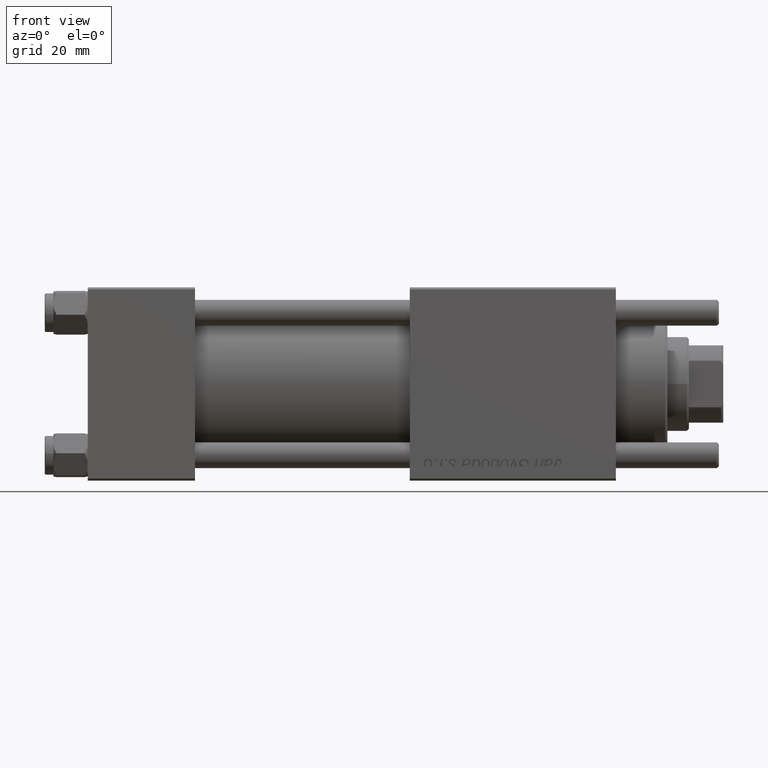
[diagram: clean part render]
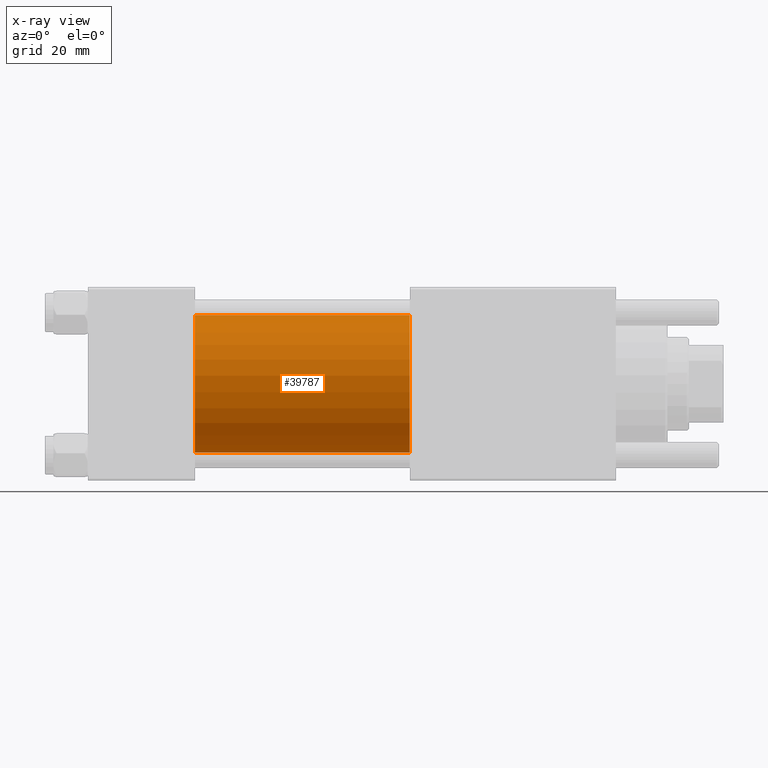
[diagram: x-ray — body ghosted, one internal face saturated and labeled with its STEP entity id]
A machine part, front view, then the same camera in x-ray: the body is ghosted and one INTERNAL B-rep face — a face not visible from any outside direction — is saturated and labeled: STEP entity #39787.
In plain terms, the highlighted cylindrical surface (partial cylindrical patch) has radius 16 mm, axis along (-1, -0, -0).
Its self-contained STEP definition (entity closure, byte-faithful):
#2209 = DIRECTION ( 'NONE',  ( 1.000000000000000000, 0.000000000000000000, 0.000000000000000000 ) ) ;
#3394 = CARTESIAN_POINT ( 'NONE',  ( 75.00000000000001421, -6.426503353294456087E-16, -16.00000000000000000 ) ) ;
#3825 = DIRECTION ( 'NONE',  ( -1.000000000000000000, -0.000000000000000000, -0.000000000000000000 ) ) ;
#4072 = LINE ( 'NONE', #47452, #41554 ) ;
#4285 = ORIENTED_EDGE ( 'NONE', *, *, #22766, .F. ) ;
#11953 = DIRECTION ( 'NONE',  ( -1.000000000000000000, -0.000000000000000000, -0.000000000000000000 ) ) ;
#12250 = CIRCLE ( 'NONE', #50779, 16.00000000000000000 ) ;
#13313 = CARTESIAN_POINT ( 'NONE',  ( 25.00000000000000000, -6.426503353294456087E-16, -16.00000000000000000 ) ) ;
#15282 = DIRECTION ( 'NONE',  ( 1.000000000000000000, 0.000000000000000000, 0.000000000000000000 ) ) ;
#17271 = VERTEX_POINT ( 'NONE', #13313 ) ;
#20409 = EDGE_CURVE ( 'NONE', #48518, #17271, #4072, .T. ) ;
#22766 = EDGE_CURVE ( 'NONE', #42854, #17271, #12250, .T. ) ;
#23763 = CARTESIAN_POINT ( 'NONE',  ( 75.00000000000001421, -2.602085213965210642E-15, 0.000000000000000000 ) ) ;
#23897 = DIRECTION ( 'NONE',  ( 0.000000000000000000, 0.000000000000000000, -1.000000000000000000 ) ) ;
#24486 = ORIENTED_EDGE ( 'NONE', *, *, #56316, .F. ) ;
#24655 = CARTESIAN_POINT ( 'NONE',  ( 75.00000000000001421, -2.602085213965210642E-15, 16.00000000000000000 ) ) ;
#26478 = LINE ( 'NONE', #33979, #54793 ) ;
#27014 = ORIENTED_EDGE ( 'NONE', *, *, #20409, .T. ) ;
#27570 = VERTEX_POINT ( 'NONE', #24655 ) ;
#30020 = DIRECTION ( 'NONE',  ( 0.000000000000000000, 0.000000000000000000, -1.000000000000000000 ) ) ;
#31863 = CIRCLE ( 'NONE', #47434, 16.00000000000000000 ) ;
#33979 = CARTESIAN_POINT ( 'NONE',  ( 75.00000000000001421, -2.602085213965210642E-15, 16.00000000000000000 ) ) ;
#34693 = CARTESIAN_POINT ( 'NONE',  ( 25.00000000000000000, -2.602085213965210642E-15, 16.00000000000000000 ) ) ;
#36463 = AXIS2_PLACEMENT_3D ( 'NONE', #23763, #11953, #41299 ) ;
#39787 = ADVANCED_FACE ( 'NONE', ( #47013 ), #50487, .F. ) ;
#41299 = DIRECTION ( 'NONE',  ( 0.000000000000000000, 0.000000000000000000, 1.000000000000000000 ) ) ;
#41554 = VECTOR ( 'NONE', #51765, 1000.000000000000000 ) ;
#41716 = CARTESIAN_POINT ( 'NONE',  ( 25.00000000000000000, -2.602085213965210642E-15, 0.000000000000000000 ) ) ;
#42854 = VERTEX_POINT ( 'NONE', #34693 ) ;
#47013 = FACE_OUTER_BOUND ( 'NONE', #56069, .T. ) ;
#47268 = CARTESIAN_POINT ( 'NONE',  ( 75.00000000000001421, -2.602085213965210642E-15, 0.000000000000000000 ) ) ;
#47434 = AXIS2_PLACEMENT_3D ( 'NONE', #47268, #2209, #30020 ) ;
#47452 = CARTESIAN_POINT ( 'NONE',  ( 75.00000000000001421, -6.426503353294456087E-16, -16.00000000000000000 ) ) ;
#48518 = VERTEX_POINT ( 'NONE', #3394 ) ;
#49651 = ORIENTED_EDGE ( 'NONE', *, *, #56055, .T. ) ;
#50487 = CYLINDRICAL_SURFACE ( 'NONE', #36463, 16.00000000000000000 ) ;
#50779 = AXIS2_PLACEMENT_3D ( 'NONE', #41716, #15282, #23897 ) ;
#51765 = DIRECTION ( 'NONE',  ( -1.000000000000000000, -0.000000000000000000, -0.000000000000000000 ) ) ;
#54793 = VECTOR ( 'NONE', #3825, 1000.000000000000000 ) ;
#56055 = EDGE_CURVE ( 'NONE', #27570, #48518, #31863, .T. ) ;
#56069 = EDGE_LOOP ( 'NONE', ( #49651, #27014, #4285, #24486 ) ) ;
#56316 = EDGE_CURVE ( 'NONE', #27570, #42854, #26478, .T. ) ;